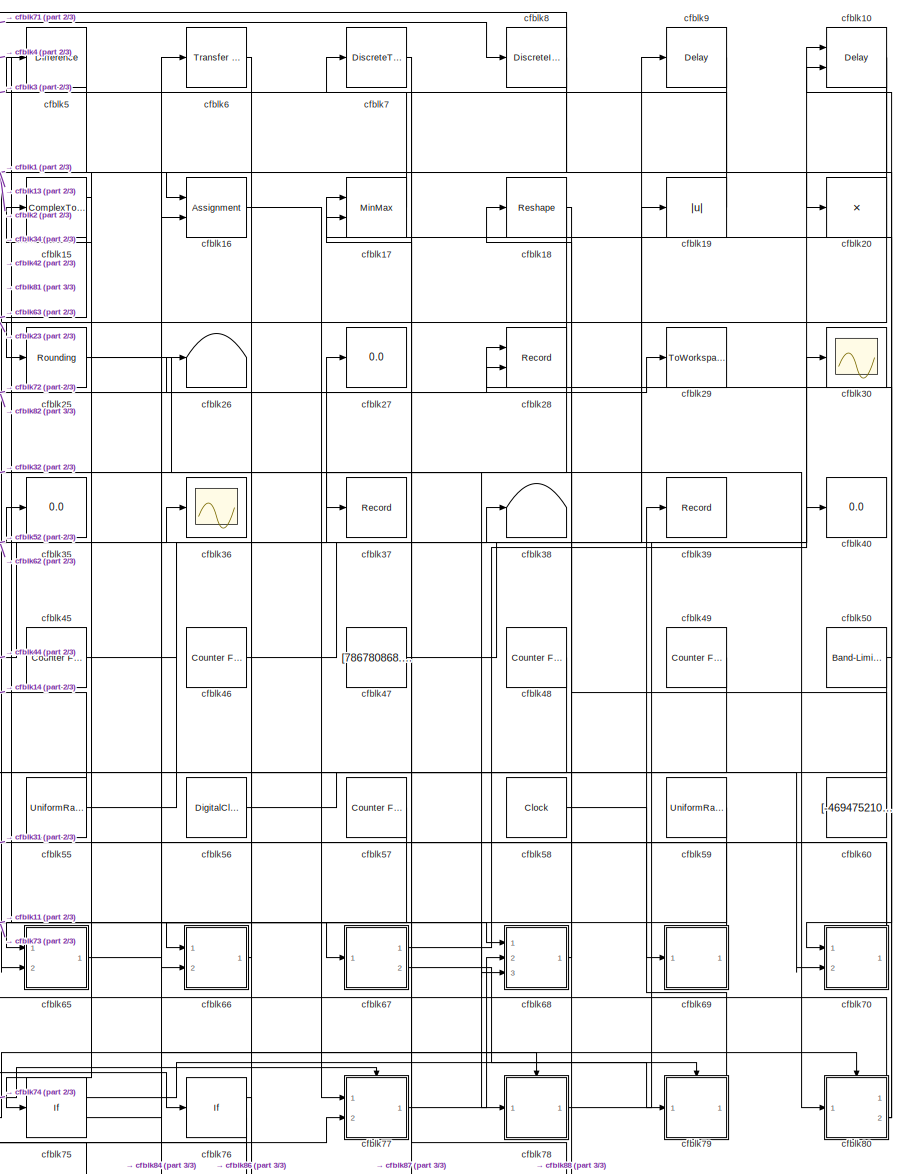
[diagram: root canvas - part 1/3, right side, full height]
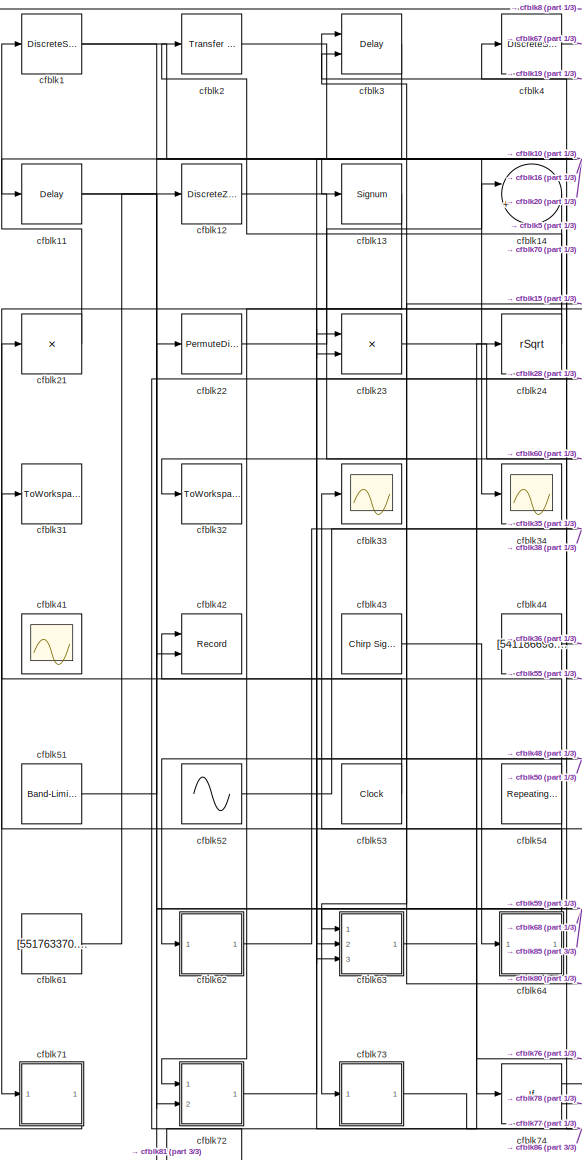
[diagram: root canvas - part 2/3, left side, full height]
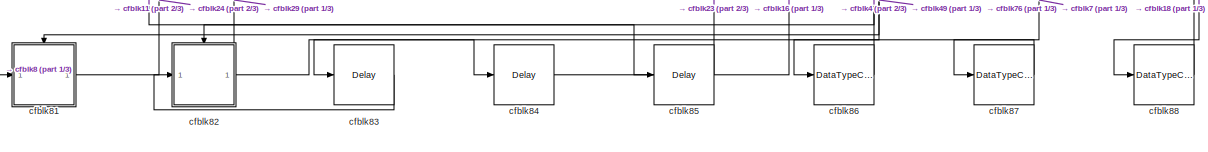
[diagram: root canvas - part 3/3, full width, bottom band]
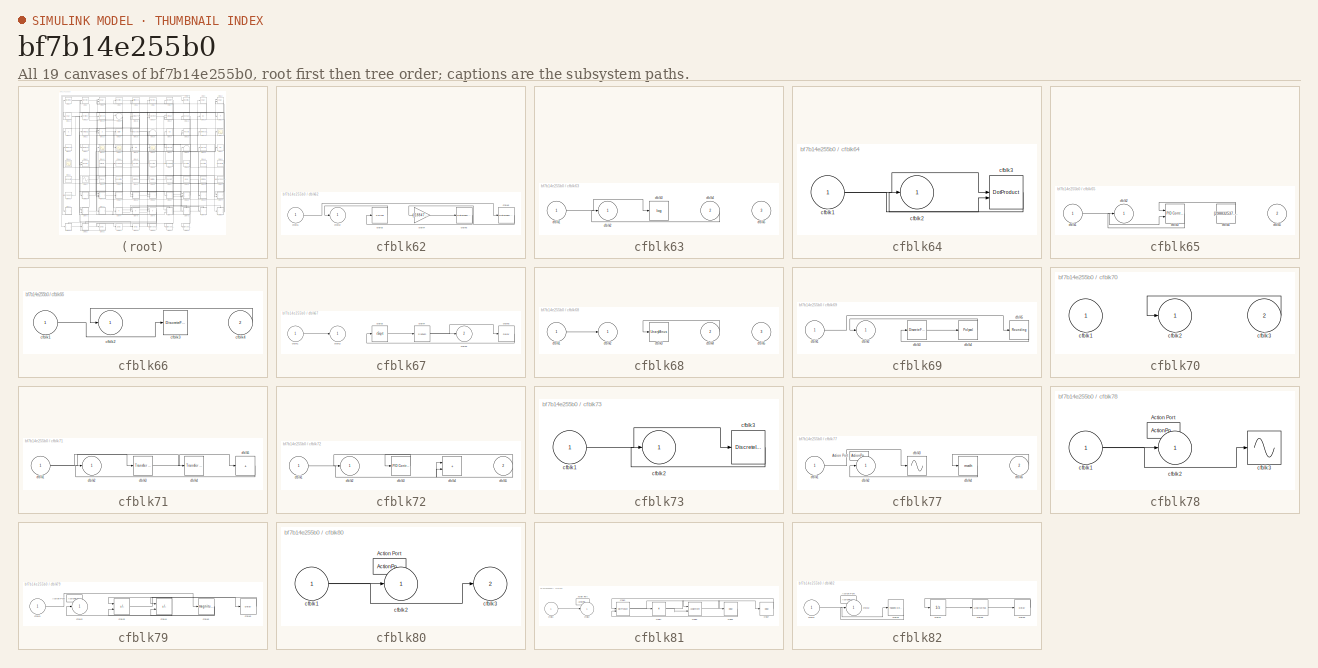
[diagram: thumbnail index - all 19 canvases of the model, root first then tree order]
MODEL slx_bf7b14e255b0
KIND model
CONFIG AbsTol = auto
CONFIG EnableMultiTasking = off
CONFIG FixedStep = auto
CONFIG MaxStep = auto
CONFIG MinStep = auto
CONFIG RelTol = 1e-3
CONFIG SampleTimeConstraint = Unconstrained
CONFIG SolverName = VariableStepAuto
CONFIG StartTime = 0.0
CONFIG StopTime = 10.0
BLOCK [DiscreteStateSpace] cfblk1
BLOCK [Delay] cfblk10
  InputPortMap = u0,e6
  Ports = [2, 1]
  SampleTime = 1
  ShowEnablePort = on
BLOCK [Delay] cfblk11
  InputPortMap = u0
  Ports = [1, 1]
  SampleTime = 1
BLOCK [DiscreteZeroPole] cfblk12
  Gain = 1
  Poles = [0 0.5]
BLOCK [Signum] cfblk13
BLOCK [Sum] cfblk14
  Inputs = |++
  Ports = [2, 1]
BLOCK [ComplexToMagnitudeAngle] cfblk15
  Ports = [1, 2]
BLOCK [Assignment] cfblk16
  DiagnosticForDimensions = Warning
  IndexOptions = Index vector (dialog)
  Indices = 1
  OutputSizes = 1
  Ports = [2, 1]
BLOCK [MinMax] cfblk17
  Function = max
  Inputs = 2
  Ports = [2, 1]
BLOCK [Reshape] cfblk18
  Ports = [1, 1]
BLOCK [Abs] cfblk19
  SaturateOnIntegerOverflow = off
BLOCK [Reference] cfblk2  REF=simulink/Discrete/Transfer Fcn
Lead or Lag
  Ports = [1, 1]
  SourceBlock = simulink/Discrete/Transfer Fcn\nLead or Lag
  SourceProductBaseCode = SL
  SourceType = Lead or Lag Compensator
BLOCK [Product] cfblk20
  Inputs = *
  Ports = [1, 1]
BLOCK [Product] cfblk21
  Inputs = *
  Ports = [1, 1]
BLOCK [PermuteDimensions] cfblk22
BLOCK [Product] cfblk23
  Ports = [2, 1]
BLOCK [Sqrt] cfblk24
  AlgorithmType = Newton-Raphson
  Operator = rSqrt
BLOCK [Rounding] cfblk25
BLOCK [Terminator] cfblk26
BLOCK [Display] cfblk27
  Decimation = 1
  Ports = [1]
BLOCK [Record] cfblk28
  CompatibilityTag = XY
  FileSettingsInternal = {"entries":[{"content":{"excelSettings":{"content":{},"type":"Streamout.ExcelSettings"}},"type":"Streamout.FileSettingStorage","uuid":"4c37d5fb-74dd-4696-a0df-e90e5f7933c2"}],"packageUris":["http://schema.mathworks.com/mf0/streamout_blocks/R2020a"],"version":"1.0"}
  Layout = [1 1]
  Ports = [2]
  SignalsInternal = {"entries":[{"content":{"signals":[{"content":{"blockPath":["sampleModel172/cfblk28"],"channel":[],"dimensions":[1],"domain":"sampleModel172/cfblk28","lineColor":"#a2142f","plots":[1],"port":1,"sid":[""],"signalID":6399,"signalName":"cfblk72"},"type":"RecordBlkView.Signal","uuid":"18b58ef6-f147-4f00-97dd-6c5d7728baf2"},{"content":{"blockPath":["sampleModel172/cfblk28"],"channel":[],"dimensions":[1...<+385ch>
  VisualizationBindings = {"xyplotplugin":{"info":[{"series":[{"bindingParametersList":[{"parameter":"X-Axis","signalID":6399,"signalName":"cfblk72"},{"parameter":"Y-Axis","signalID":6403,"signalName":"cfblk80:2"}],"seriesID":36726}],"subplotID":1}]}}
BLOCK [ToWorkspace] cfblk29
  FixptAsFi = on
  MaxDataPoints = inf
  Ports = [1]
  SampleTime = -1
  SaveFormat = Timeseries
  VariableName = tpbbzip
BLOCK [Delay] cfblk3
  InputPortMap = u0,e6
  Ports = [2, 1]
  SampleTime = 1
  ShowEnablePort = on
BLOCK [Scope] cfblk30
  Floating = off
  NumInputPorts = 1
  Ports = [1]
BLOCK [ToWorkspace] cfblk31
  FixptAsFi = on
  MaxDataPoints = inf
  Ports = [1]
  SampleTime = -1
  SaveFormat = Timeseries
  VariableName = uvhsoef
BLOCK [ToWorkspace] cfblk32
  FixptAsFi = on
  MaxDataPoints = inf
  Ports = [1]
  SampleTime = -1
  SaveFormat = Timeseries
  VariableName = ekkikuv
BLOCK [Scope] cfblk33
  Floating = off
  NumInputPorts = 1
  Ports = [1]
BLOCK [Scope] cfblk34
  Floating = off
  NumInputPorts = 1
  Ports = [1]
BLOCK [Display] cfblk35
  Decimation = 1
  Ports = [1]
BLOCK [Scope] cfblk36
  Floating = off
  NumInputPorts = 1
  Ports = [1]
BLOCK [Record] cfblk37
  FileSettingsInternal = {"entries":[{"content":{"excelSettings":{"content":{},"type":"Streamout.ExcelSettings"}},"type":"Streamout.FileSettingStorage","uuid":"666d1965-106f-49f3-aa2f-b556bec9c068"}],"packageUris":["http://schema.mathworks.com/mf0/streamout_blocks/R2020a"],"version":"1.0"}
  Ports = [1]
  SignalsInternal = {"entries":[{"content":{"signals":[{"content":{"blockPath":["sampleModel172/cfblk37"],"channel":[],"dimensions":[1],"domain":"sampleModel172/cfblk37","lineColor":"#64d413","plots":[1],"port":1,"sid":[""],"signalID":6409,"signalName":"cfblk18"},"type":"RecordBlkView.Signal","uuid":"579457c8-c496-41a4-82c2-eba13d432ecc"}]},"type":"RecordBlkView.InputSignals","uuid":"6e0c83c2-8fe5-488b-bd7b-1d63ca069...<+97ch>
  VisualizationBindings = {"sparklinesplugin":{"info":[{"bindingParametersList":[],"subplotID":1}]}}
BLOCK [Terminator] cfblk38
BLOCK [Record] cfblk39
  FileSettingsInternal = {"entries":[{"content":{"excelSettings":{"content":{},"type":"Streamout.ExcelSettings"}},"type":"Streamout.FileSettingStorage","uuid":"d348c3f3-15d7-45a7-9944-3cee22ff94f9"}],"packageUris":["http://schema.mathworks.com/mf0/streamout_blocks/R2020a"],"version":"1.0"}
  Ports = [1]
  SignalsInternal = {"entries":[{"content":{"signals":[{"content":{"blockPath":["sampleModel172/cfblk39"],"channel":[],"dimensions":[1],"domain":"sampleModel172/cfblk39","lineColor":"#ff13a6","plots":[1],"port":1,"sid":[""],"signalID":6413,"signalName":"cfblk79"},"type":"RecordBlkView.Signal","uuid":"ee09b67d-d6f4-4d50-be6d-3dddccd276d5"}]},"type":"RecordBlkView.InputSignals","uuid":"6358c080-dbab-4218-a449-23edf1143...<+97ch>
  VisualizationBindings = {"sparklinesplugin":{"info":[{"bindingParametersList":[],"subplotID":1}]}}
BLOCK [DiscreteStateSpace] cfblk4
BLOCK [Display] cfblk40
  Decimation = 1
  Ports = [1]
BLOCK [Scope] cfblk41
  Floating = on
  NumInputPorts = 1
  Ports = []
BLOCK [Record] cfblk42
  CompatibilityTag = XY
  FileSettingsInternal = {"entries":[{"content":{"excelSettings":{"content":{},"type":"Streamout.ExcelSettings"}},"type":"Streamout.FileSettingStorage","uuid":"79f54138-a6c4-42fd-9433-9cd93f3ff392"}],"packageUris":["http://schema.mathworks.com/mf0/streamout_blocks/R2020a"],"version":"1.0"}
  Layout = [1 1]
  Ports = [2]
  SignalsInternal = {"entries":[{"content":{"signals":[{"content":{"blockPath":["sampleModel172/cfblk42"],"channel":[],"dimensions":[1],"domain":"sampleModel172/cfblk42","lineColor":"#a2142f","plots":[1],"port":1,"sid":[""],"signalID":6417,"signalName":"cfblk54"},"type":"RecordBlkView.Signal","uuid":"99384b5f-59da-4b0b-b0ff-6a1d5a9a7f91"},{"content":{"blockPath":["sampleModel172/cfblk42"],"channel":[],"dimensions":[1...<+382ch>
  VisualizationBindings = {"xyplotplugin":{"info":[{"series":[{"bindingParametersList":[{"parameter":"X-Axis","signalID":6417,"signalName":"cfblk54"},{"parameter":"Y-Axis","signalID":6421,"signalName":"cfblk8"}],"seriesID":3961}],"subplotID":1}]}}
BLOCK [Reference] cfblk43  REF=simulink/Sources/Chirp Signal
  Ports = [0, 1]
  SourceBlock = simulink/Sources/Chirp Signal
  SourceProductBaseCode = SL
  SourceType = chirp
BLOCK [Constant] cfblk44
  SampleTime = 1
  Value = [541186696.386722]
BLOCK [Reference] cfblk45  REF=simulink/Sources/Counter
Free-Running
  Ports = [0, 1]
  SourceBlock = simulink/Sources/Counter\nFree-Running
  SourceProductBaseCode = SL
  SourceType = Counter Free-Running
BLOCK [Reference] cfblk46  REF=simulink/Sources/Counter
Free-Running
  Ports = [0, 1]
  SourceBlock = simulink/Sources/Counter\nFree-Running
  SourceProductBaseCode = SL
  SourceType = Counter Free-Running
BLOCK [Constant] cfblk47
  SampleTime = 1
  Value = [786780868.086022]
BLOCK [Reference] cfblk48  REF=simulink/Sources/Counter
Free-Running
  Ports = [0, 1]
  SourceBlock = simulink/Sources/Counter\nFree-Running
  SourceProductBaseCode = SL
  SourceType = Counter Free-Running
BLOCK [Reference] cfblk49  REF=simulink/Sources/Counter
Free-Running
  Ports = [0, 1]
  SourceBlock = simulink/Sources/Counter\nFree-Running
  SourceProductBaseCode = SL
  SourceType = Counter Free-Running
BLOCK [Reference] cfblk5  REF=simulink/Discrete/Difference
  Ports = [1, 1]
  SourceBlock = simulink/Discrete/Difference
  SourceProductBaseCode = SL
  SourceType = Difference
BLOCK [Reference] cfblk50  REF=simulink/Sources/Band-Limited
White Noise
  Ports = [0, 1]
  SourceBlock = simulink/Sources/Band-Limited\nWhite Noise
  SourceProductBaseCode = SL
  SourceType = Band-Limited White Noise.
BLOCK [Reference] cfblk51  REF=simulink/Sources/Band-Limited
White Noise
  Ports = [0, 1]
  SourceBlock = simulink/Sources/Band-Limited\nWhite Noise
  SourceProductBaseCode = SL
  SourceType = Band-Limited White Noise.
BLOCK [Sin] cfblk52
  Amplitude = [-381260761.661942]
  Bias = [134835104.739763]
  Ports = [0, 1]
  SampleTime = 0
BLOCK [Clock] cfblk53
BLOCK [Reference] cfblk54  REF=simulink/Sources/Repeating
Sequence
  Ports = [0, 1]
  SourceBlock = simulink/Sources/Repeating\nSequence
  SourceProductBaseCode = SL
  SourceType = Repeating table
BLOCK [UniformRandomNumber] cfblk55
  Maximum = [2395720489.749123]
  Minimum = [-2930461244.017724]
  SampleTime = 0.1
  Seed = [78690133.000000]
BLOCK [DigitalClock] cfblk56
BLOCK [Reference] cfblk57  REF=simulink/Sources/Counter
Free-Running
  Ports = [0, 1]
  SourceBlock = simulink/Sources/Counter\nFree-Running
  SourceProductBaseCode = SL
  SourceType = Counter Free-Running
BLOCK [Clock] cfblk58
BLOCK [UniformRandomNumber] cfblk59
  Maximum = [6128316988.201324]
  Minimum = [-3055983286.462450]
  SampleTime = 0.1
  Seed = [15339092.000000]
BLOCK [Reference] cfblk6  REF=simulink/Discrete/Transfer Fcn
Real Zero
  Ports = [1, 1]
  SourceBlock = simulink/Discrete/Transfer Fcn\nReal Zero
  SourceProductBaseCode = SL
  SourceType = Transfer Fcn Real Zero
BLOCK [Constant] cfblk60
  SampleTime = 1
  Value = [-469475210.551471]
BLOCK [Constant] cfblk61
  SampleTime = 1
  Value = [551763370.515126]
BLOCK [SubSystem] cfblk62
  Ports = [1, 1]
  RequestExecContextInheritance = off
BLOCK [Inport] cfblk62/cfblk1
BLOCK [Outport] cfblk62/cfblk2
BLOCK [Polyval] cfblk62/cfblk3
  Coefs = [ +2.081618890e-019, -1.441693666e-014, +4.719686976e-010, -8.536869453e-006, +1.621573104e-001, -8.087801117e+001 ]
BLOCK [Gain] cfblk62/cfblk4
  Gain = [-188470516.261914]
BLOCK [DataTypeConversion] cfblk62/cfblk5
  RndMeth = Floor
  SaturateOnIntegerOverflow = off
BLOCK [DataTypeConversion] cfblk62/cfblk6
  RndMeth = Floor
  SaturateOnIntegerOverflow = off
BLOCK [SubSystem] cfblk63
  Ports = [3, 1]
  RequestExecContextInheritance = off
BLOCK [Inport] cfblk63/cfblk1
BLOCK [Outport] cfblk63/cfblk2
BLOCK [Math] cfblk63/cfblk3
  Operator = log
  Ports = [1, 1]
BLOCK [Inport] cfblk63/cfblk4
  Port = 2
BLOCK [Inport] cfblk63/cfblk5
  Port = 3
BLOCK [SubSystem] cfblk64
  Ports = [1, 1]
  RequestExecContextInheritance = off
BLOCK [Inport] cfblk64/cfblk1
BLOCK [Outport] cfblk64/cfblk2
BLOCK [DotProduct] cfblk64/cfblk3
  OutDataTypeStr = Inherit: Inherit via internal rule
BLOCK [SubSystem] cfblk65
  Ports = [2, 1]
  RequestExecContextInheritance = off
BLOCK [Inport] cfblk65/cfblk1
BLOCK [Outport] cfblk65/cfblk2
BLOCK [Reference] cfblk65/cfblk3  REF=slpidlib/PID Controller (2DOF)
  Ports = [2, 1]
  SourceBlock = slpidlib/PID Controller (2DOF)
  SourceProductBaseCode = SL
  SourceType = PID 2dof
BLOCK [Constant] cfblk65/cfblk4
  SampleTime = 1
  Value = [298832537.461770]
BLOCK [Inport] cfblk65/cfblk5
  Port = 2
BLOCK [SubSystem] cfblk66
  Ports = [2, 1]
  RequestExecContextInheritance = off
BLOCK [Inport] cfblk66/cfblk1
BLOCK [Outport] cfblk66/cfblk2
BLOCK [DiscreteFir] cfblk66/cfblk3
  InputPortMap = u0
  OutputPortMap = o0
  Ports = [1, 1]
  SampleTime = 1
BLOCK [Inport] cfblk66/cfblk4
  Port = 2
BLOCK [SubSystem] cfblk67
  Ports = [1, 2]
  RequestExecContextInheritance = off
BLOCK [Inport] cfblk67/cfblk1
BLOCK [Outport] cfblk67/cfblk2
BLOCK [Sqrt] cfblk67/cfblk3
  AlgorithmType = Newton-Raphson
  Operator = rSqrt
BLOCK [Signum] cfblk67/cfblk4
BLOCK [Outport] cfblk67/cfblk5
  Port = 2
BLOCK [Delay] cfblk67/cfblk6
  InputPortMap = u0
  Ports = [1, 1]
  SampleTime = 1
BLOCK [SubSystem] cfblk68
  Ports = [3, 1]
  RequestExecContextInheritance = off
BLOCK [Inport] cfblk68/cfblk1
BLOCK [Outport] cfblk68/cfblk2
BLOCK [UnaryMinus] cfblk68/cfblk3
BLOCK [Inport] cfblk68/cfblk4
  Port = 2
BLOCK [Inport] cfblk68/cfblk5
  Port = 3
BLOCK [SubSystem] cfblk69
  Ports = [1, 1]
  RequestExecContextInheritance = off
BLOCK [Inport] cfblk69/cfblk1
BLOCK [Outport] cfblk69/cfblk2
BLOCK [DiscreteFilter] cfblk69/cfblk3
  InputPortMap = u0
  Ports = [1, 1]
  SampleTime = 1
BLOCK [Polyval] cfblk69/cfblk4
  Coefs = [ +2.081618890e-019, -1.441693666e-014, +4.719686976e-010, -8.536869453e-006, +1.621573104e-001, -8.087801117e+001 ]
BLOCK [Rounding] cfblk69/cfblk5
BLOCK [DiscreteTransferFcn] cfblk7
  InputPortMap = u0
  Ports = [1, 1]
  SampleTime = 1
BLOCK [SubSystem] cfblk70
  Ports = [2, 1]
  RequestExecContextInheritance = off
BLOCK [Inport] cfblk70/cfblk1
BLOCK [Outport] cfblk70/cfblk2
BLOCK [Inport] cfblk70/cfblk3
  Port = 2
BLOCK [SubSystem] cfblk71
  Ports = [1, 1]
  RequestExecContextInheritance = off
BLOCK [Inport] cfblk71/cfblk1
BLOCK [Outport] cfblk71/cfblk2
BLOCK [Reference] cfblk71/cfblk3  REF=simulink/Discrete/Transfer Fcn
Lead or Lag
  Ports = [1, 1]
  SourceBlock = simulink/Discrete/Transfer Fcn\nLead or Lag
  SourceProductBaseCode = SL
  SourceType = Lead or Lag Compensator
BLOCK [Reference] cfblk71/cfblk4  REF=simulink/Discrete/Transfer Fcn
Real Zero
  Ports = [1, 1]
  SourceBlock = simulink/Discrete/Transfer Fcn\nReal Zero
  SourceProductBaseCode = SL
  SourceType = Transfer Fcn Real Zero
BLOCK [Sum] cfblk71/cfblk5
  IconShape = rectangular
  Inputs = +
  Ports = [1, 1]
BLOCK [SubSystem] cfblk72
  Ports = [2, 1]
  RequestExecContextInheritance = off
BLOCK [Inport] cfblk72/cfblk1
BLOCK [Outport] cfblk72/cfblk2
BLOCK [Reference] cfblk72/cfblk3  REF=slpidlib/PID Controller
  Ports = [1, 1]
  SourceBlock = slpidlib/PID Controller
  SourceProductBaseCode = SL
  SourceType = PID 1dof
BLOCK [Sum] cfblk72/cfblk4
  IconShape = rectangular
  Ports = [2, 1]
BLOCK [Inport] cfblk72/cfblk5
  Port = 2
BLOCK [SubSystem] cfblk73
  Ports = [1, 1]
  RequestExecContextInheritance = off
BLOCK [Inport] cfblk73/cfblk1
BLOCK [Outport] cfblk73/cfblk2
BLOCK [DiscreteIntegrator] cfblk73/cfblk3
  ICPrevOutput = DiscIntNeverNeededParam
  ICPrevScaledInput = DiscIntNeverNeededParam
  InitialConditionSetting = Auto
  Ports = [1, 1]
BLOCK [If] cfblk74
  IfExpression = u1 >= 0
  Ports = [1, 2]
  SampleTime = 1
BLOCK [If] cfblk75
  IfExpression = u1 >= 0
  Ports = [1, 2]
  SampleTime = 1
BLOCK [If] cfblk76
  IfExpression = u1 >= 0
  Ports = [1, 2]
  SampleTime = 1
BLOCK [SubSystem] cfblk77
  Ports = [2, 1, 0, 0, 0, 0, 0, 1]
  RequestExecContextInheritance = off
  TreatAsAtomicUnit = on
BLOCK [ActionPort] cfblk77/Action Port
  ActionPortLabel = if(u1 >= 0)
BLOCK [Inport] cfblk77/cfblk1
BLOCK [Outport] cfblk77/cfblk2
BLOCK [Sin] cfblk77/cfblk3
  Ports = [1, 1]
  SampleTime = 0
  TimeSource = Use external signal
BLOCK [Math] cfblk77/cfblk4
  Ports = [1, 1]
BLOCK [Inport] cfblk77/cfblk5
  Port = 2
BLOCK [SubSystem] cfblk78
  Ports = [1, 1, 0, 0, 0, 0, 0, 1]
  RequestExecContextInheritance = off
  TreatAsAtomicUnit = on
BLOCK [ActionPort] cfblk78/Action Port
  ActionPortLabel = else
BLOCK [Inport] cfblk78/cfblk1
BLOCK [Outport] cfblk78/cfblk2
BLOCK [Sin] cfblk78/cfblk3
  Ports = [1, 1]
  SampleTime = 0
  TimeSource = Use external signal
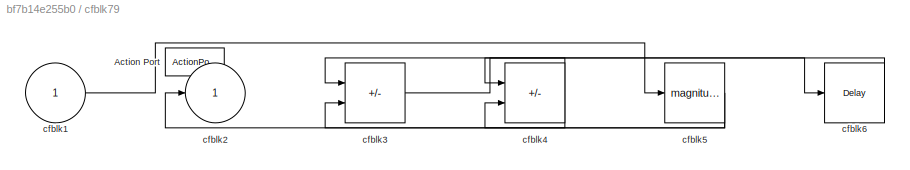
BLOCK [SubSystem] cfblk79
  Ports = [1, 1, 0, 0, 0, 0, 0, 1]
  RequestExecContextInheritance = off
  TreatAsAtomicUnit = on
BLOCK [ActionPort] cfblk79/Action Port
  ActionPortLabel = if(u1 >= 0)
BLOCK [Inport] cfblk79/cfblk1
BLOCK [Outport] cfblk79/cfblk2
BLOCK [Sum] cfblk79/cfblk3
  IconShape = rectangular
  Inputs = +-
  Ports = [2, 1]
BLOCK [Sum] cfblk79/cfblk4
  IconShape = rectangular
  Inputs = +-
  Ports = [2, 1]
BLOCK [Math] cfblk79/cfblk5
  Operator = magnitude^2
  Ports = [1, 1]
BLOCK [Delay] cfblk79/cfblk6
  InputPortMap = u0
  Ports = [1, 1]
BLOCK [DiscreteIntegrator] cfblk8
  ICPrevOutput = DiscIntNeverNeededParam
  ICPrevScaledInput = DiscIntNeverNeededParam
  InitialConditionSetting = Auto
  Ports = [1, 1]
BLOCK [SubSystem] cfblk80
  Ports = [1, 2, 0, 0, 0, 0, 0, 1]
  RequestExecContextInheritance = off
  TreatAsAtomicUnit = on
BLOCK [ActionPort] cfblk80/Action Port
  ActionPortLabel = else
BLOCK [Inport] cfblk80/cfblk1
BLOCK [Outport] cfblk80/cfblk2
BLOCK [Outport] cfblk80/cfblk3
  Port = 2
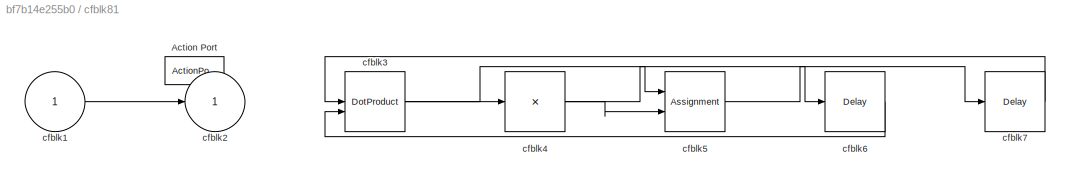
BLOCK [SubSystem] cfblk81
  Ports = [1, 1, 0, 0, 0, 0, 0, 1]
  RequestExecContextInheritance = off
  TreatAsAtomicUnit = on
BLOCK [ActionPort] cfblk81/Action Port
  ActionPortLabel = if(u1 >= 0)
BLOCK [Inport] cfblk81/cfblk1
BLOCK [Outport] cfblk81/cfblk2
BLOCK [DotProduct] cfblk81/cfblk3
  OutDataTypeStr = Inherit: Inherit via internal rule
BLOCK [Product] cfblk81/cfblk4
  Inputs = *
  Ports = [1, 1]
BLOCK [Assignment] cfblk81/cfblk5
  DiagnosticForDimensions = Warning
  IndexOptions = Index vector (dialog)
  Indices = 1
  OutputSizes = 1
  Ports = [2, 1]
BLOCK [Delay] cfblk81/cfblk6
  InputPortMap = u0
  Ports = [1, 1]
BLOCK [Delay] cfblk81/cfblk7
  InputPortMap = u0
  Ports = [1, 1]
BLOCK [SubSystem] cfblk82
  Ports = [1, 1, 0, 0, 0, 0, 0, 1]
  RequestExecContextInheritance = off
  TreatAsAtomicUnit = on
BLOCK [ActionPort] cfblk82/Action Port
  ActionPortLabel = else
BLOCK [Inport] cfblk82/cfblk1
BLOCK [Outport] cfblk82/cfblk2
BLOCK [Reference] cfblk82/cfblk3  REF=simulink/Discrete/Tapped Delay
  Ports = [1, 1]
  SourceBlock = simulink/Discrete/Tapped Delay
  SourceProductBaseCode = SL
  SourceType = Tapped Delay Line
BLOCK [UnitDelay] cfblk82/cfblk4
  HasFrameUpgradeWarning = on
  SampleTime = -1
BLOCK [UnaryMinus] cfblk82/cfblk5
BLOCK [Delay] cfblk82/cfblk6
  InputPortMap = u0
  Ports = [1, 1]
BLOCK [Delay] cfblk83
  InputPortMap = u0
  Ports = [1, 1]
  SampleTime = 1
BLOCK [Delay] cfblk84
  InputPortMap = u0
  Ports = [1, 1]
  SampleTime = 1
BLOCK [Delay] cfblk85
  InputPortMap = u0
  Ports = [1, 1]
  SampleTime = 1
BLOCK [DataTypeConversion] cfblk86
  RndMeth = Floor
  SaturateOnIntegerOverflow = off
BLOCK [DataTypeConversion] cfblk87
  RndMeth = Floor
  SaturateOnIntegerOverflow = off
BLOCK [DataTypeConversion] cfblk88
  RndMeth = Floor
  SaturateOnIntegerOverflow = off
BLOCK [Delay] cfblk9
  InputPortMap = u0
  Ports = [1, 1]
  SampleTime = 1
NET cfblk10:1 -> cfblk25:1, cfblk34:1
NET cfblk11:1 -> cfblk68:1, cfblk85:1
LINE cfblk12:1 -> cfblk74:1
LINE cfblk13:1 -> cfblk72:1
LINE cfblk14:1 -> cfblk71:1
LINE cfblk15:1 -> cfblk75:1
LINE cfblk15:2 -> cfblk63:1
LINE cfblk16:1 -> cfblk77:1
LINE cfblk17:1 -> cfblk5:1
NET cfblk18:1 -> cfblk37:1, cfblk88:1
LINE cfblk19:1 -> cfblk3:1
NET cfblk1:1 -> cfblk20:1, cfblk70:1
NET cfblk20:1 -> cfblk13:1, cfblk23:2
LINE cfblk21:1 -> cfblk1:1
LINE cfblk22:1 -> cfblk14:1
LINE cfblk23:1 -> cfblk80:1
LINE cfblk24:1 -> cfblk2:1
NET cfblk25:1 -> cfblk68:3, cfblk78:1
LINE cfblk2:1 -> cfblk16:1
LINE cfblk3:1 -> cfblk11:1
LINE cfblk43:1 -> cfblk64:1
LINE cfblk44:1 -> cfblk36:1
LINE cfblk45:1 -> cfblk19:1
LINE cfblk46:1 -> cfblk40:1
LINE cfblk47:1 -> cfblk9:1
LINE cfblk48:1 -> cfblk62:1
LINE cfblk49:1 -> cfblk86:1
LINE cfblk4:1 -> cfblk67:1
NET cfblk50:1 -> cfblk10:2, cfblk63:2
LINE cfblk51:1 -> cfblk22:1
LINE cfblk52:1 -> cfblk35:1
LINE cfblk53:1 -> cfblk21:1
NET cfblk54:1 -> cfblk42:1, cfblk72:2
NET cfblk55:1 -> cfblk14:2, cfblk27:1
LINE cfblk56:1 -> cfblk70:2
LINE cfblk57:1 -> cfblk65:1
LINE cfblk58:1 -> cfblk69:1
LINE cfblk59:1 -> cfblk73:1
LINE cfblk5:1 -> cfblk63:3
LINE cfblk60:1 -> cfblk32:1
LINE cfblk61:1 -> cfblk12:1
LINE cfblk62/cfblk1:1 -> cfblk62/cfblk6:1
LINE cfblk62/cfblk3:1 -> cfblk62/cfblk2:1
LINE cfblk62/cfblk4:1 -> cfblk62/cfblk5:1
LINE cfblk62/cfblk5:1 -> cfblk62/cfblk3:1
LINE cfblk62/cfblk6:1 -> cfblk62/cfblk4:1
LINE cfblk62:1 -> cfblk38:1
LINE cfblk63/cfblk1:1 -> cfblk63/cfblk3:1
LINE cfblk63/cfblk4:1 -> cfblk63/cfblk2:1
LINE cfblk63:1 -> cfblk76:1
NET cfblk64/cfblk1:1 -> cfblk64/cfblk3:1, cfblk64/cfblk3:2
LINE cfblk64/cfblk3:1 -> cfblk64/cfblk2:1
LINE cfblk64:1 -> cfblk33:1
LINE cfblk65/cfblk1:1 -> cfblk65/cfblk3:2
LINE cfblk65/cfblk3:1 -> cfblk65/cfblk2:1
LINE cfblk65/cfblk4:1 -> cfblk65/cfblk3:1
LINE cfblk65:1 -> cfblk6:1
LINE cfblk66/cfblk1:1 -> cfblk66/cfblk3:1
LINE cfblk66/cfblk4:1 -> cfblk66/cfblk2:1
LINE cfblk66:1 -> cfblk26:1
LINE cfblk67/cfblk1:1 -> cfblk67/cfblk2:1
LINE cfblk67/cfblk3:1 -> cfblk67/cfblk4:1
NET cfblk67/cfblk4:1 -> cfblk67/cfblk5:1, cfblk67/cfblk6:1
LINE cfblk67/cfblk6:1 -> cfblk67/cfblk3:1
LINE cfblk67:1 -> cfblk10:1
LINE cfblk67:2 -> cfblk79:1
LINE cfblk68/cfblk1:1 -> cfblk68/cfblk2:1
LINE cfblk68/cfblk4:1 -> cfblk68/cfblk3:1
LINE cfblk68:1 -> cfblk18:1
LINE cfblk69/cfblk1:1 -> cfblk69/cfblk5:1
LINE cfblk69/cfblk3:1 -> cfblk69/cfblk4:1
LINE cfblk69/cfblk4:1 -> cfblk69/cfblk2:1
LINE cfblk69/cfblk5:1 -> cfblk69/cfblk3:1
LINE cfblk69:1 -> cfblk15:1
LINE cfblk6:1 -> cfblk66:1
LINE cfblk70/cfblk3:1 -> cfblk70/cfblk2:1
NET cfblk70:1 -> cfblk17:1, cfblk31:1
NET cfblk71/cfblk1:1 -> cfblk71/cfblk3:1, cfblk71/cfblk4:1
LINE cfblk71/cfblk3:1 -> cfblk71/cfblk5:1
LINE cfblk71/cfblk5:1 -> cfblk71/cfblk2:1
LINE cfblk71:1 -> cfblk8:1
LINE cfblk72/cfblk1:1 -> cfblk72/cfblk4:1
LINE cfblk72/cfblk3:1 -> cfblk72/cfblk2:1
NET cfblk72/cfblk5:1 -> cfblk72/cfblk3:1, cfblk72/cfblk4:2
LINE cfblk72:1 -> cfblk28:1
LINE cfblk73/cfblk1:1 -> cfblk73/cfblk3:1
LINE cfblk73/cfblk3:1 -> cfblk73/cfblk2:1
LINE cfblk73:1 -> cfblk77:2
LINE cfblk74:1 -> cfblk77:ifaction
LINE cfblk74:2 -> cfblk78:ifaction
LINE cfblk75:1 -> cfblk79:ifaction
LINE cfblk75:2 -> cfblk80:ifaction
LINE cfblk76:1 -> cfblk81:ifaction
LINE cfblk76:2 -> cfblk82:ifaction
LINE cfblk77/cfblk1:1 -> cfblk77/cfblk3:1
LINE cfblk77/cfblk4:1 -> cfblk77/cfblk2:1
LINE cfblk77/cfblk5:1 -> cfblk77/cfblk4:1
LINE cfblk77:1 -> cfblk68:2
NET cfblk78/cfblk1:1 -> cfblk78/cfblk2:1, cfblk78/cfblk3:1
LINE cfblk78:1 -> cfblk30:1
LINE cfblk79/cfblk1:1 -> cfblk79/cfblk5:1
LINE cfblk79/cfblk3:1 -> cfblk79/cfblk6:1
NET cfblk79/cfblk4:1 -> cfblk79/cfblk3:1, cfblk79/cfblk3:2
NET cfblk79/cfblk5:1 -> cfblk79/cfblk2:1, cfblk79/cfblk4:2
LINE cfblk79/cfblk6:1 -> cfblk79/cfblk4:1
LINE cfblk79:1 -> cfblk39:1
LINE cfblk7:1 -> cfblk87:1
NET cfblk80/cfblk1:1 -> cfblk80/cfblk2:1, cfblk80/cfblk3:1
LINE cfblk80:1 -> cfblk3:2
NET cfblk80:2 -> cfblk17:2, cfblk28:2
LINE cfblk81/cfblk1:1 -> cfblk81/cfblk2:1
NET cfblk81/cfblk3:1 -> cfblk81/cfblk4:1, cfblk81/cfblk5:1
NET cfblk81/cfblk4:1 -> cfblk81/cfblk5:2, cfblk81/cfblk6:1
LINE cfblk81/cfblk5:1 -> cfblk81/cfblk7:1
LINE cfblk81/cfblk6:1 -> cfblk81/cfblk3:2
LINE cfblk81/cfblk7:1 -> cfblk81/cfblk3:1
LINE cfblk81:1 -> cfblk24:1
LINE cfblk82/cfblk1:1 -> cfblk82/cfblk3:1
LINE cfblk82/cfblk3:1 -> cfblk82/cfblk2:1
LINE cfblk82/cfblk4:1 -> cfblk82/cfblk5:1
LINE cfblk82/cfblk5:1 -> cfblk82/cfblk6:1
LINE cfblk82/cfblk6:1 -> cfblk82/cfblk4:1
NET cfblk82:1 -> cfblk29:1, cfblk84:1
LINE cfblk83:1 -> cfblk82:1
LINE cfblk84:1 -> cfblk16:2
LINE cfblk85:1 -> cfblk23:1
LINE cfblk86:1 -> cfblk4:1
LINE cfblk87:1 -> cfblk83:1
LINE cfblk88:1 -> cfblk7:1
NET cfblk8:1 -> cfblk42:2, cfblk66:2, cfblk81:1
LINE cfblk9:1 -> cfblk65:2
note: NET lines group one-source signal fan-out (src -> all destinations, sorted); 1:1 wires keep LINE
